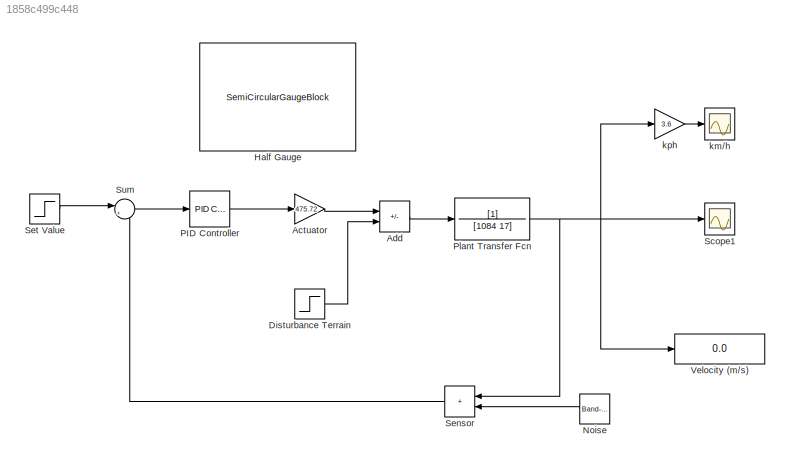
MODEL slx_1858c499c448
KIND model
CONFIG AbsTol = auto
CONFIG EnableMultiTasking = off
CONFIG FixedStep = auto
CONFIG MaxStep = auto
CONFIG MinStep = auto
CONFIG RelTol = 1e-3
CONFIG SampleTimeConstraint = Unconstrained
CONFIG SolverName = VariableStepAuto
CONFIG StartTime = 0.0
CONFIG StopTime = 700.0
BLOCK [Gain] Actuator
  Gain = 475.72
BLOCK [Sum] Add
  IconShape = rectangular
  Inputs = +-
  Ports = [2, 1]
BLOCK [Step] Disturbance Terrain
  After = 475.72*9.81*sin(pi/45)
  SampleTime = 0
  Time = 350
BLOCK [SemiCircularGaugeBlock] Half Gauge
  ScaleMax = 220
  Tag = Speedometer
BLOCK [Reference] Noise  REF=simulink/Sources/Band-Limited
White Noise
  Ports = [0, 1]
  SourceBlock = simulink/Sources/Band-Limited\nWhite Noise
  SourceProductBaseCode = SL
  SourceType = Band-Limited White Noise.
BLOCK [Reference] PID Controller  REF=pid_lib/PID Controller
  Ports = [1, 1]
  SourceBlock = pid_lib/PID Controller
  SourceProductBaseCode = SL
  SourceType = PID 1dof
BLOCK [TransferFcn] Plant Transfer Fcn
  Denominator = [1084 17]
BLOCK [Scope] Scope1
  Floating = off
  NumInputPorts = 1
  Ports = [1]
  ScopeSpecificationString = Simulink.scopes.TimeScopeBlockCfg('CurrentConfiguration', extmgr.ConfigurationSet(extmgr.Configuration('Core','General UI',true),extmgr.Configuration('Core','Source UI',true),extmgr.Configuration('Sources','WiredSimulink',true,'DataLoggingVariableName','ScopeData1','DataLoggingDecimation','1'),extmgr.Configuration('Visuals','Time Domain',true,'SerializedDisplays',{struct('MinYLimReal','-4.5519','M...<+1482ch>
BLOCK [Sum] Sensor
  IconShape = rectangular
  Ports = [2, 1]
BLOCK [Step] Set Value
  After = 27.78
  SampleTime = 0
BLOCK [Sum] Sum
  Inputs = |+-
  Ports = [2, 1]
BLOCK [Display] Velocity (m//s)
  Decimation = 1
  Ports = [1]
BLOCK [Scope] km//h
  Floating = off
  NumInputPorts = 1
  Ports = [1]
  ScopeSpecificationString = Simulink.scopes.TimeScopeBlockCfg('CurrentConfiguration', extmgr.ConfigurationSet(extmgr.Configuration('Core','General UI',true),extmgr.Configuration('Core','Source UI',true),extmgr.Configuration('Sources','WiredSimulink',true),extmgr.Configuration('Visuals','Time Domain',true,'SerializedDisplays',{struct('MinYLimReal','-17.65457','MaxYLimReal','158.33392','YLabelReal','','MinYLimMag','0.00000','M...<+1333ch>
BLOCK [Gain] kph
  Gain = 3.6
LINE Actuator:1 -> Add:1
LINE Add:1 -> Plant Transfer Fcn:1
LINE Disturbance Terrain:1 -> Add:2
LINE Noise:1 -> Sensor:2
LINE PID Controller:1 -> Actuator:1
NET Plant Transfer Fcn:1 -> Scope1:1, Sensor:1, Velocity (m//s):1, kph:1
LINE Sensor:1 -> Sum:2
LINE Set Value:1 -> Sum:1
LINE Sum:1 -> PID Controller:1
LINE kph:1 -> km//h:1
note: NET lines group one-source signal fan-out (src -> all destinations, sorted); 1:1 wires keep LINE
